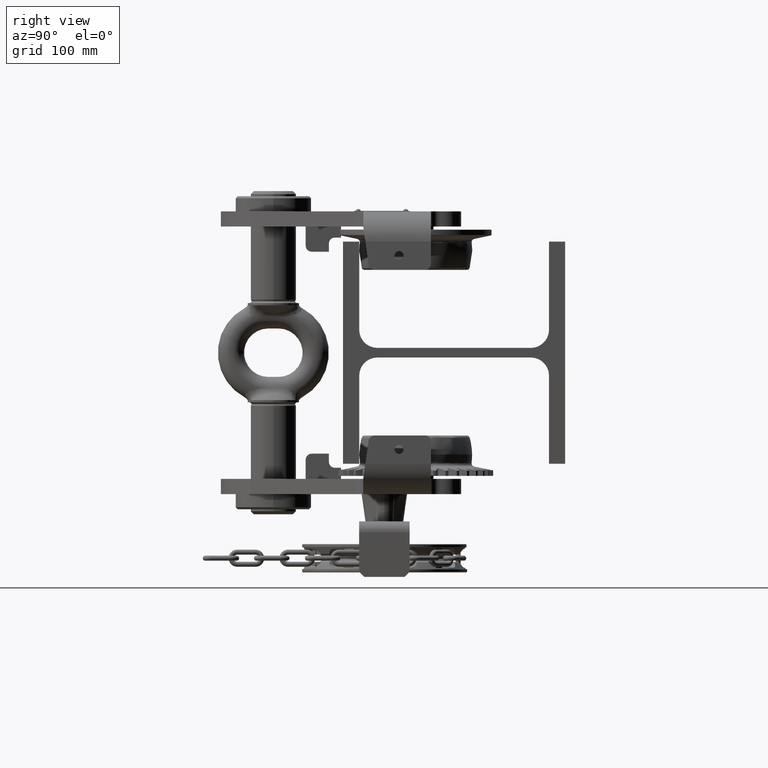
[diagram: clean part render]
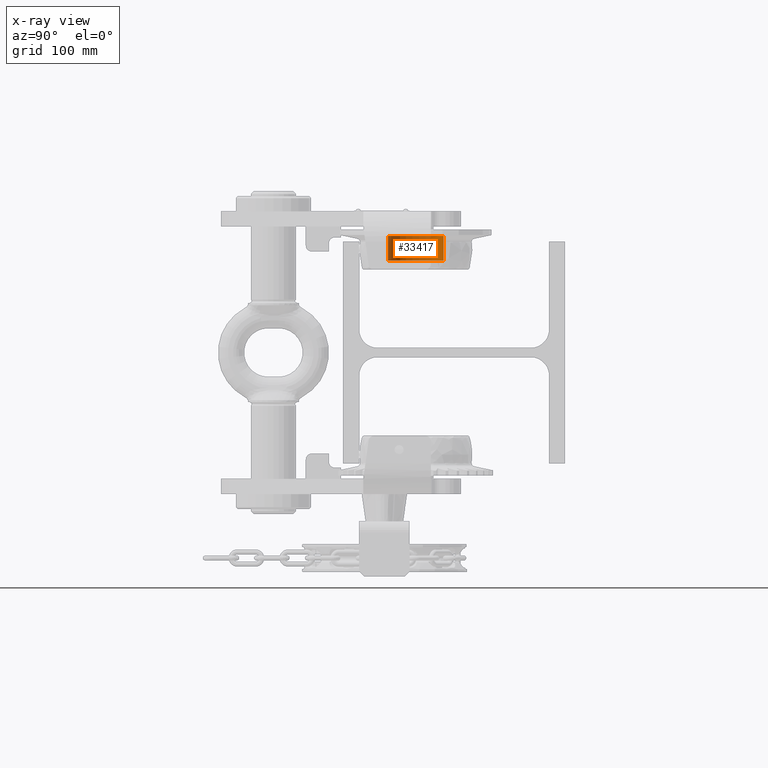
[diagram: x-ray — body ghosted, one internal face saturated and labeled with its STEP entity id]
A machine part, right view, then the same camera in x-ray: the body is ghosted and one INTERNAL B-rep face — a face not visible from any outside direction — is saturated and labeled: STEP entity #33417.
In plain terms, the highlighted cylindrical surface (edge-blend (fillet) strip) has radius 27.5 mm, axis along (-0, 0, 1).
Its self-contained STEP definition (entity closure, byte-faithful):
#5051 = LINE ( 'NONE', #101134, #96759 ) ;
#8006 = EDGE_CURVE ( 'NONE', #63414, #79133, #5051, .T. ) ;
#11418 = EDGE_LOOP ( 'NONE', ( #48908, #38531, #85327, #58311 ) ) ;
#20040 = CARTESIAN_POINT ( 'NONE',  ( 90.00000000000000000, -37.99999999999952400, 132.0000000000010200 ) ) ;
#28972 = DIRECTION ( 'NONE',  ( 5.046468293750712000E-016, 1.000000000000000000, 0.0000000000000000000 ) ) ;
#33417 = ADVANCED_FACE ( 'NONE', ( #89952 ), #102403, .F. ) ;
#33953 = AXIS2_PLACEMENT_3D ( 'NONE', #61190, #96999, #43678 ) ;
#38531 = ORIENTED_EDGE ( 'NONE', *, *, #45714, .F. ) ;
#39890 = VECTOR ( 'NONE', #69986, 1000.000000000000000 ) ;
#43678 = DIRECTION ( 'NONE',  ( 5.046468293750712000E-016, 1.000000000000000000, 0.0000000000000000000 ) ) ;
#45714 = EDGE_CURVE ( 'NONE', #77954, #63414, #86798, .T. ) ;
#47462 = DIRECTION ( 'NONE',  ( -1.665334536937734800E-016, 5.551115123125785200E-017, 1.000000000000000000 ) ) ;
#48908 = ORIENTED_EDGE ( 'NONE', *, *, #8006, .F. ) ;
#55038 = DIRECTION ( 'NONE',  ( -1.665334536937734800E-016, 5.551115123125785200E-017, 1.000000000000000000 ) ) ;
#57949 = CARTESIAN_POINT ( 'NONE',  ( 90.00000000000001400, -10.49999999999952700, 132.0000000000010200 ) ) ;
#58311 = ORIENTED_EDGE ( 'NONE', *, *, #73286, .T. ) ;
#58394 = AXIS2_PLACEMENT_3D ( 'NONE', #20040, #55038, #28972 ) ;
#61190 = CARTESIAN_POINT ( 'NONE',  ( 90.00000000000000000, -37.99999999999952400, 115.6000000000010300 ) ) ;
#63414 = VERTEX_POINT ( 'NONE', #115400 ) ;
#63471 = CARTESIAN_POINT ( 'NONE',  ( 90.00000000000000000, -37.99999999999952400, 91.00000000000103700 ) ) ;
#69986 = DIRECTION ( 'NONE',  ( -1.665334536937734800E-016, 5.551115123125785200E-017, 1.000000000000000000 ) ) ;
#72087 = DIRECTION ( 'NONE',  ( -1.665334536937734800E-016, 5.551115123125785200E-017, 1.000000000000000000 ) ) ;
#73286 = EDGE_CURVE ( 'NONE', #84490, #79133, #98624, .T. ) ;
#73716 = EDGE_CURVE ( 'NONE', #77954, #84490, #80423, .T. ) ;
#74516 = CARTESIAN_POINT ( 'NONE',  ( 90.00000000000001400, -10.49999999999952700, 91.00000000000103700 ) ) ;
#77954 = VERTEX_POINT ( 'NONE', #74516 ) ;
#79133 = VERTEX_POINT ( 'NONE', #99171 ) ;
#80423 = LINE ( 'NONE', #57949, #39890 ) ;
#80626 = CARTESIAN_POINT ( 'NONE',  ( 90.00000000000001400, -10.49999999999952700, 115.6000000000010300 ) ) ;
#82593 = AXIS2_PLACEMENT_3D ( 'NONE', #63471, #72087, #115280 ) ;
#84490 = VERTEX_POINT ( 'NONE', #80626 ) ;
#85327 = ORIENTED_EDGE ( 'NONE', *, *, #73716, .T. ) ;
#86798 = CIRCLE ( 'NONE', #82593, 27.50000000000000000 ) ;
#89952 = FACE_OUTER_BOUND ( 'NONE', #11418, .T. ) ;
#96759 = VECTOR ( 'NONE', #47462, 1000.000000000000000 ) ;
#96999 = DIRECTION ( 'NONE',  ( -1.665334536937734800E-016, 5.551115123125785200E-017, 1.000000000000000000 ) ) ;
#98624 = CIRCLE ( 'NONE', #33953, 27.50000000000000000 ) ;
#99171 = CARTESIAN_POINT ( 'NONE',  ( 89.99999999999998600, -65.49999999999953100, 115.6000000000010300 ) ) ;
#101134 = CARTESIAN_POINT ( 'NONE',  ( 89.99999999999998600, -65.49999999999953100, 132.0000000000010200 ) ) ;
#102403 = CYLINDRICAL_SURFACE ( 'NONE', #58394, 27.50000000000000000 ) ;
#115280 = DIRECTION ( 'NONE',  ( 5.046468293750712000E-016, 1.000000000000000000, 0.0000000000000000000 ) ) ;
#115400 = CARTESIAN_POINT ( 'NONE',  ( 89.99999999999998600, -65.49999999999953100, 91.00000000000103700 ) ) ;